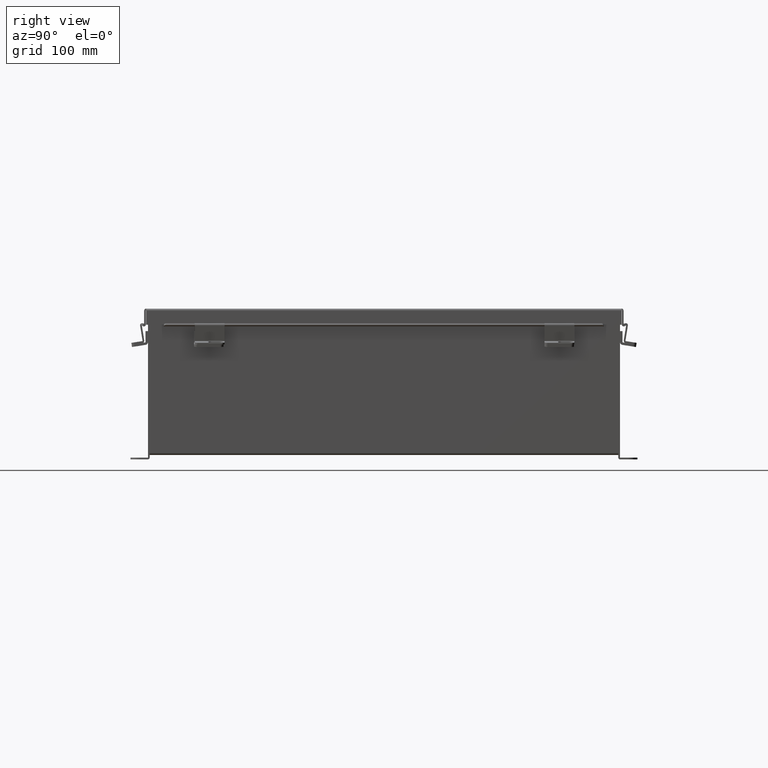
[diagram: clean part render]
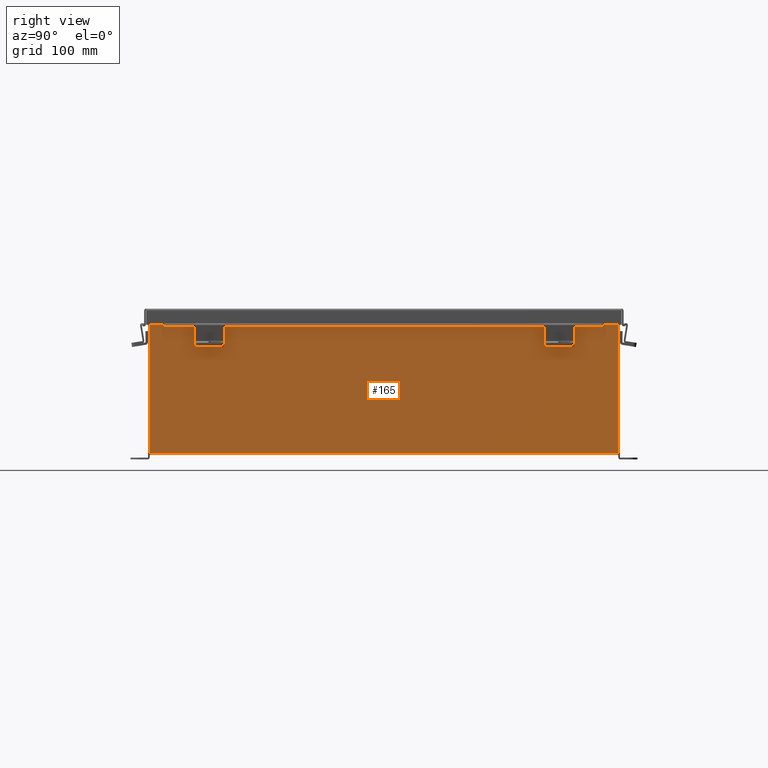
[diagram: same view with one face highlighted and labeled with its STEP entity id]
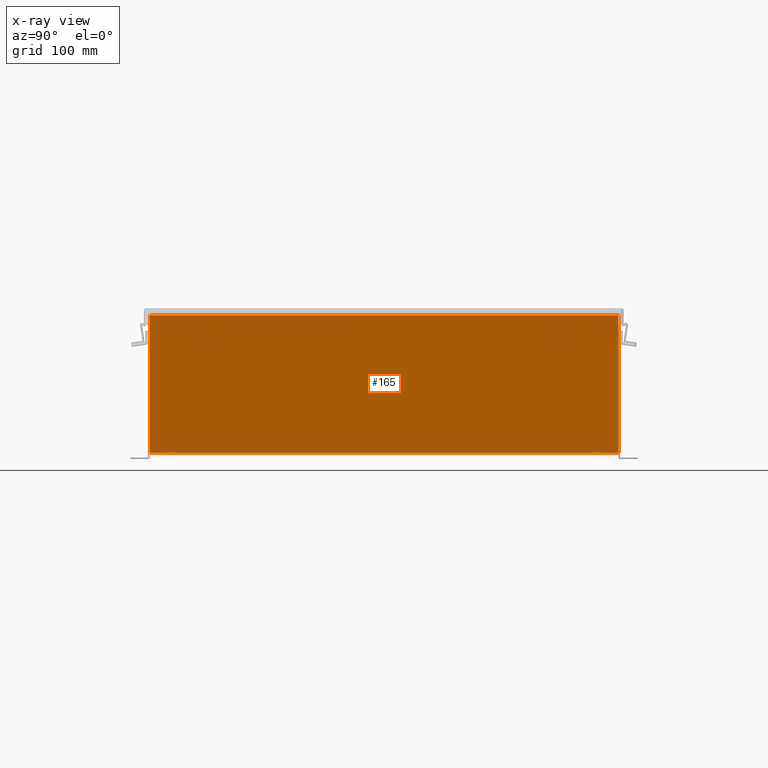
[diagram: x-ray of the same camera — body ghosted, the highlighted face saturated]
A machine part, right view. The second image highlights one B-rep face of the part: STEP entity #165.
The next image is the same camera in x-ray: the body ghosted, the highlighted face saturated — about 0% of this face is hidden behind the body in this view.
In plain terms, the highlighted planar face has unit normal (-1, 0, 0).
Its self-contained STEP definition (entity closure, byte-faithful):
#165 = ADVANCED_FACE ( 'NONE', ( #4284 ), #7577, .F. ) ;
#408 = CARTESIAN_POINT ( 'NONE',  ( 10.00000000000000200, -9.925299999999998200, -3.388011006045334800E-014 ) ) ;
#729 = CARTESIAN_POINT ( 'NONE',  ( 10.00000000000000200, 0.0000000000000000000, -3.388011006045334800E-014 ) ) ;
#990 = DIRECTION ( 'NONE',  ( 3.361929640444176300E-015, -3.735477378271307500E-016, 1.000000000000000000 ) ) ;
#1561 = VERTEX_POINT ( 'NONE', #7877 ) ;
#1712 = LINE ( 'NONE', #8552, #7542 ) ;
#1936 = VECTOR ( 'NONE', #990, 39.37007874015748100 ) ;
#2513 = CARTESIAN_POINT ( 'NONE',  ( 10.00000000000000200, 9.925299999999998200, 0.01299999999999986400 ) ) ;
#2792 = EDGE_CURVE ( 'NONE', #5149, #1561, #9688, .T. ) ;
#2821 = VECTOR ( 'NONE', #5646, 39.37007874015748100 ) ;
#3099 = CARTESIAN_POINT ( 'NONE',  ( 10.00000000000002300, -9.925299999999998200, 5.837599999999999200 ) ) ;
#3287 = CARTESIAN_POINT ( 'NONE',  ( 10.00000000000000200, 9.925300000000001800, -3.017253669819773100E-014 ) ) ;
#3619 = VECTOR ( 'NONE', #5711, 39.37007874015748100 ) ;
#3791 = DIRECTION ( 'NONE',  ( 3.361929640444175900E-015, 0.0000000000000000000, 1.000000000000000000 ) ) ;
#4284 = FACE_OUTER_BOUND ( 'NONE', #7916, .T. ) ;
#4882 = CARTESIAN_POINT ( 'NONE',  ( 10.00000000000002300, 9.925299999999998200, 5.837599999999999200 ) ) ;
#5149 = VERTEX_POINT ( 'NONE', #3099 ) ;
#5646 = DIRECTION ( 'NONE',  ( -0.0000000000000000000, -1.000000000000000000, -0.0000000000000000000 ) ) ;
#5711 = DIRECTION ( 'NONE',  ( -3.361929640444176300E-015, 0.0000000000000000000, -1.000000000000000000 ) ) ;
#5788 = EDGE_CURVE ( 'NONE', #9831, #1561, #1712, .T. ) ;
#6218 = LINE ( 'NONE', #3287, #1936 ) ;
#6256 = DIRECTION ( 'NONE',  ( -0.0000000000000000000, -1.000000000000000000, -0.0000000000000000000 ) ) ;
#6290 = EDGE_CURVE ( 'NONE', #9831, #6347, #6218, .T. ) ;
#6347 = VERTEX_POINT ( 'NONE', #6363 ) ;
#6363 = CARTESIAN_POINT ( 'NONE',  ( 10.00000000000002300, 9.925299999999996500, 5.837599999999999200 ) ) ;
#6618 = LINE ( 'NONE', #4882, #2821 ) ;
#7020 = ORIENTED_EDGE ( 'NONE', *, *, #5788, .F. ) ;
#7531 = ORIENTED_EDGE ( 'NONE', *, *, #8734, .T. ) ;
#7542 = VECTOR ( 'NONE', #6256, 39.37007874015748100 ) ;
#7576 = ORIENTED_EDGE ( 'NONE', *, *, #2792, .T. ) ;
#7577 = PLANE ( 'NONE',  #7891 ) ;
#7877 = CARTESIAN_POINT ( 'NONE',  ( 10.00000000000000200, -9.925299999999998200, 0.01299999999999985500 ) ) ;
#7891 = AXIS2_PLACEMENT_3D ( 'NONE', #729, #8359, #3791 ) ;
#7916 = EDGE_LOOP ( 'NONE', ( #7531, #7576, #7020, #9297 ) ) ;
#8359 = DIRECTION ( 'NONE',  ( -1.000000000000000000, 0.0000000000000000000, 3.361929640444175900E-015 ) ) ;
#8552 = CARTESIAN_POINT ( 'NONE',  ( 10.00000000000000200, -9.925299999999998200, 0.01299999999999986400 ) ) ;
#8734 = EDGE_CURVE ( 'NONE', #6347, #5149, #6618, .T. ) ;
#9297 = ORIENTED_EDGE ( 'NONE', *, *, #6290, .T. ) ;
#9688 = LINE ( 'NONE', #408, #3619 ) ;
#9831 = VERTEX_POINT ( 'NONE', #2513 ) ;